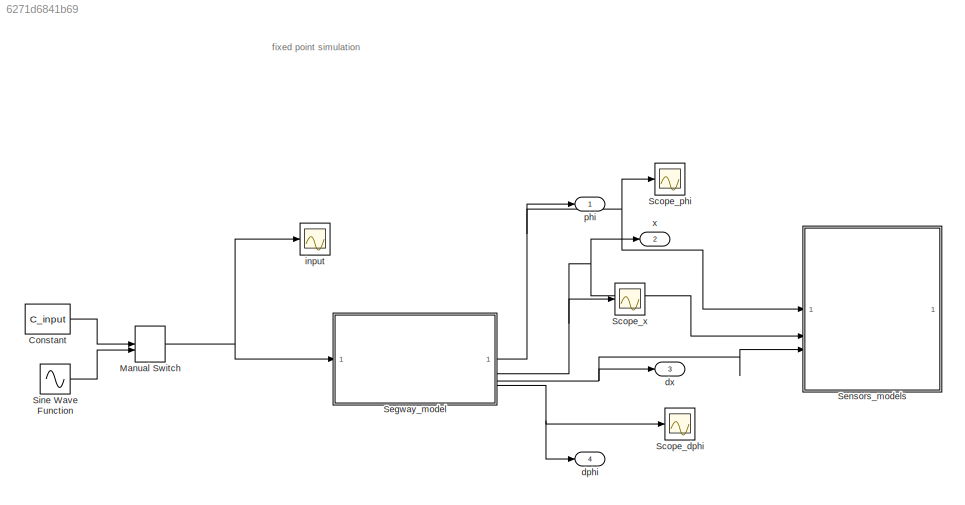
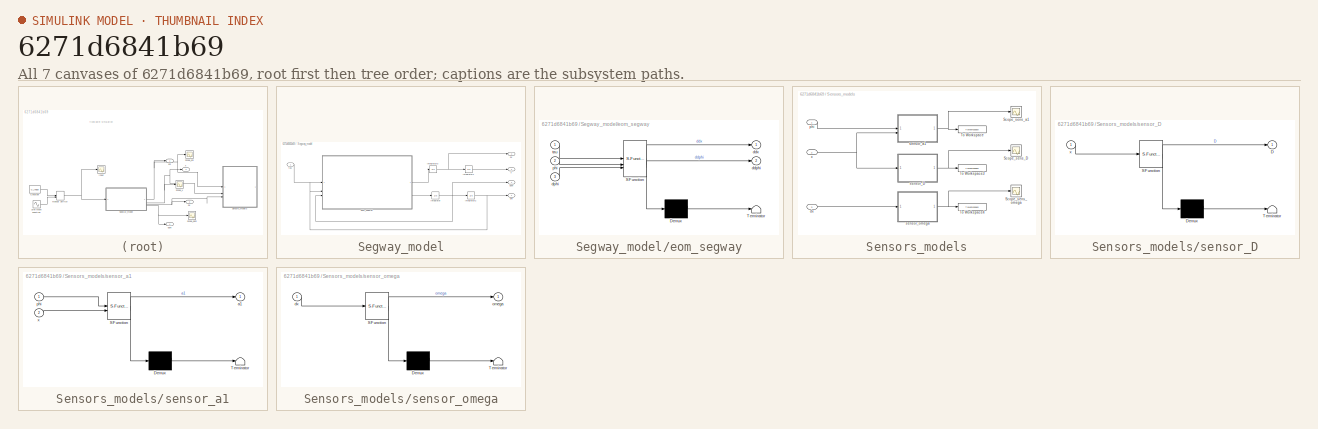
[diagram: thumbnail index - all 7 canvases of the model, root first then tree order]
MODEL slx_6271d6841b69
KIND model
CONFIG AbsTol = auto
CONFIG EnableMultiTasking = off
CONFIG FixedStep = auto
CONFIG MaxStep = auto
CONFIG MinStep = auto
CONFIG RelTol = 1e-3
CONFIG SampleTimeConstraint = Unconstrained
CONFIG SolverName = FixedStepAuto
CONFIG StartTime = 0.0
CONFIG StopTime = 15
BLOCK [Constant] Constant
  Value = C_input
BLOCK [ManualSwitch] Manual Switch
  CurrentSetting = 0
BLOCK [Scope] Scope_dphi
  Floating = off
  NumInputPorts = 1
  ScopeSpecificationString = Simulink.scopes.TimeScopeBlockCfg('CurrentConfiguration', extmgr.ConfigurationSet(extmgr.Configuration('Core','General UI',true),extmgr.Configuration('Core','Source UI',true),extmgr.Configuration('Sources','WiredSimulink',true,'DataLoggingVariableName','ScopeData1'),extmgr.Configuration('Visuals','Time Domain',true,'SerializedDisplays',{struct('MinYLimReal','-9.61638','MaxYLimReal','9.61638','YLab...<+1373ch>
BLOCK [Scope] Scope_phi
  Floating = off
  NumInputPorts = 1
  ScopeSpecificationString = Simulink.scopes.TimeScopeBlockCfg('CurrentConfiguration', extmgr.ConfigurationSet(extmgr.Configuration('Core','General UI',true),extmgr.Configuration('Core','Source UI',true),extmgr.Configuration('Sources','WiredSimulink',true),extmgr.Configuration('Visuals','Time Domain',true,'SerializedDisplays',{struct('MinYLimReal','0.5531','MaxYLimReal','5.73009','YLabelReal','','MinYLimMag','0.5531','MaxYLim...<+1400ch>
BLOCK [Scope] Scope_x
  Floating = off
  NumInputPorts = 1
  ScopeSpecificationString = Simulink.scopes.TimeScopeBlockCfg('CurrentConfiguration', extmgr.ConfigurationSet(extmgr.Configuration('Core','General UI',true),extmgr.Configuration('Core','Source UI',true),extmgr.Configuration('Sources','WiredSimulink',true,'DataLoggingVariableName','ScopeData1'),extmgr.Configuration('Visuals','Time Domain',true,'SerializedDisplays',{struct('MinYLimReal','-0.03861','MaxYLimReal','0.34748','YLab...<+1446ch>
BLOCK [SubSystem] Segway_model
BLOCK [Integrator] Segway_model/Integrator
  InitialCondition = dphi_0
BLOCK [Integrator] Segway_model/Integrator1
  InitialCondition = x_0
BLOCK [Integrator] Segway_model/Integrator2
  InitialCondition = phi_0
BLOCK [Integrator] Segway_model/Integrator3
  InitialCondition = dx_0
BLOCK [Outport] Segway_model/dphi
  Port = 4
BLOCK [Outport] Segway_model/dx
  Port = 3
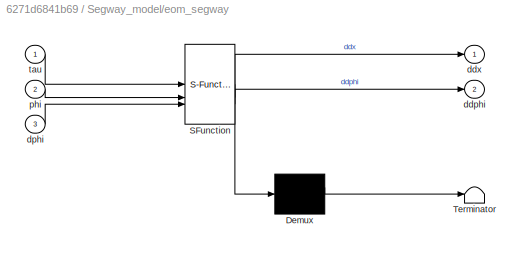
BLOCK [SubSystem] Segway_model/eom_segway
  ErrorFcn = Stateflow.Translate.translate
  LibrarySourceBlock = simulink/User-Defined\nFunctions/MATLAB Function
  PermitHierarchicalResolution = ExplicitOnly
  SFBlockType = MATLAB Function
  TreatAsAtomicUnit = on
BLOCK [Demux] Segway_model/eom_segway/ Demux 
  Outputs = 1
BLOCK [S-Function] Segway_model/eom_segway/ SFunction 
  EnableBusSupport = on
  FunctionName = sf_sfun
  Parameters = eom_params
  PortCounts = [3 3]
  SFcnIsStateOwnerBlock = off
  SFunctionDeploymentMode = off
  Tag = Stateflow S-Function 2
BLOCK [Terminator] Segway_model/eom_segway/ Terminator 
BLOCK [Outport] Segway_model/eom_segway/ddphi
  Port = 2
BLOCK [Outport] Segway_model/eom_segway/ddx
BLOCK [Inport] Segway_model/eom_segway/dphi
  Port = 3
BLOCK [Inport] Segway_model/eom_segway/phi
  Port = 2
BLOCK [Inport] Segway_model/eom_segway/tau
BLOCK [Outport] Segway_model/phi
BLOCK [Inport] Segway_model/tau
BLOCK [Outport] Segway_model/x
  Port = 2
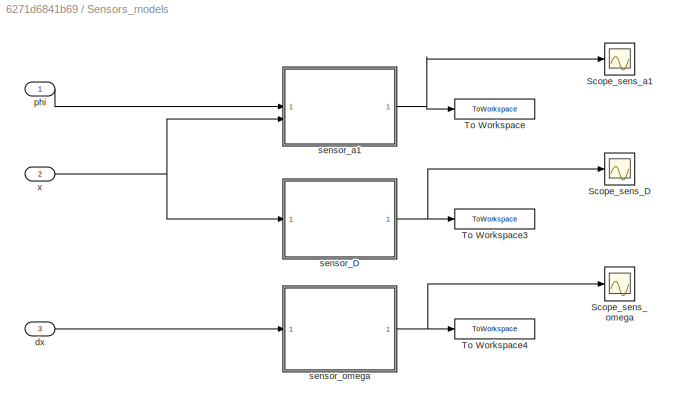
BLOCK [SubSystem] Sensors_models
BLOCK [Scope] Sensors_models/Scope_sens_D
  Floating = off
  NumInputPorts = 1
  ScopeSpecificationString = Simulink.scopes.TimeScopeBlockCfg('CurrentConfiguration', extmgr.ConfigurationSet(extmgr.Configuration('Core','General UI',true),extmgr.Configuration('Core','Source UI',true),extmgr.Configuration('Sources','WiredSimulink',true,'DataLoggingVariableName','ScopeData1'),extmgr.Configuration('Visuals','Time Domain',true,'SerializedDisplays',{struct('MinYLimReal','-0.03861','MaxYLimReal','0.34748','YLab...<+1443ch>
BLOCK [Scope] Sensors_models/Scope_sens_a1
  Floating = off
  NumInputPorts = 1
  ScopeSpecificationString = Simulink.scopes.TimeScopeBlockCfg('CurrentConfiguration', extmgr.ConfigurationSet(extmgr.Configuration('Core','General UI',true),extmgr.Configuration('Core','Source UI',true),extmgr.Configuration('Sources','WiredSimulink',true,'DataLoggingVariableName','ScopeData2'),extmgr.Configuration('Visuals','Time Domain',true,'SerializedDisplays',{struct('MinYLimReal','-0.4477','MaxYLimReal','1.24579','YLabe...<+1437ch>
BLOCK [Scope] Sensors_models/Scope_sens_omega
  Floating = off
  NumInputPorts = 1
  ScopeSpecificationString = Simulink.scopes.TimeScopeBlockCfg('CurrentConfiguration', extmgr.ConfigurationSet(extmgr.Configuration('Core','General UI',true),extmgr.Configuration('Core','Source UI',true),extmgr.Configuration('Sources','WiredSimulink',true,'DataLoggingVariableName','ScopeData3'),extmgr.Configuration('Visuals','Time Domain',true,'SerializedDisplays',{struct('MinYLimReal','-4.44002','MaxYLimReal','4.44002','YLab...<+1472ch>
BLOCK [ToWorkspace] Sensors_models/To Workspace
  FixptAsFi = on
  MaxDataPoints = inf
  SampleTime = -1
  SaveFormat = Structure With Time
  VariableName = a1
BLOCK [ToWorkspace] Sensors_models/To Workspace3
  FixptAsFi = on
  MaxDataPoints = inf
  SampleTime = -1
  SaveFormat = Structure With Time
  VariableName = D
BLOCK [ToWorkspace] Sensors_models/To Workspace4
  FixptAsFi = on
  MaxDataPoints = inf
  SampleTime = -1
  SaveFormat = Structure With Time
  VariableName = omega
BLOCK [Inport] Sensors_models/dx
  Port = 3
BLOCK [Inport] Sensors_models/phi
BLOCK [SubSystem] Sensors_models/sensor_D
  ErrorFcn = Stateflow.Translate.translate
  PermitHierarchicalResolution = ExplicitOnly
  SFBlockType = MATLAB Function
  SystemSampleTime = T_sensor_D
  TreatAsAtomicUnit = on
BLOCK [Demux] Sensors_models/sensor_D/ Demux 
  Outputs = 1
BLOCK [S-Function] Sensors_models/sensor_D/ SFunction 
  EnableBusSupport = on
  FunctionName = sf_sfun
  Parameters = std_dev_D
  PortCounts = [1 2]
  SFcnIsStateOwnerBlock = off
  SFunctionDeploymentMode = off
  Tag = Stateflow S-Function 3
BLOCK [Terminator] Sensors_models/sensor_D/ Terminator 
BLOCK [Outport] Sensors_models/sensor_D/D
BLOCK [Inport] Sensors_models/sensor_D/x
BLOCK [SubSystem] Sensors_models/sensor_a1
  ErrorFcn = Stateflow.Translate.translate
  PermitHierarchicalResolution = ExplicitOnly
  SFBlockType = MATLAB Function
  SystemSampleTime = T_sensor_a1
  TreatAsAtomicUnit = on
BLOCK [Demux] Sensors_models/sensor_a1/ Demux 
  Outputs = 1
BLOCK [S-Function] Sensors_models/sensor_a1/ SFunction 
  EnableBusSupport = on
  FunctionName = sf_sfun
  Parameters = L_a1,S_a1,eom_params,std_dev_a1
  PortCounts = [2 2]
  SFcnIsStateOwnerBlock = off
  SFunctionDeploymentMode = off
  Tag = Stateflow S-Function 5
BLOCK [Terminator] Sensors_models/sensor_a1/ Terminator 
BLOCK [Outport] Sensors_models/sensor_a1/a1
BLOCK [Inport] Sensors_models/sensor_a1/phi
BLOCK [Inport] Sensors_models/sensor_a1/x
  Port = 2
BLOCK [SubSystem] Sensors_models/sensor_omega
  ErrorFcn = Stateflow.Translate.translate
  PermitHierarchicalResolution = ExplicitOnly
  SFBlockType = MATLAB Function
  SystemSampleTime = T_sensor_omega
  TreatAsAtomicUnit = on
BLOCK [Demux] Sensors_models/sensor_omega/ Demux 
  Outputs = 1
BLOCK [S-Function] Sensors_models/sensor_omega/ SFunction 
  EnableBusSupport = on
  FunctionName = sf_sfun
  Parameters = eom_params,std_dev_omega
  PortCounts = [1 2]
  SFcnIsStateOwnerBlock = off
  SFunctionDeploymentMode = off
  Tag = Stateflow S-Function 4
BLOCK [Terminator] Sensors_models/sensor_omega/ Terminator 
BLOCK [Inport] Sensors_models/sensor_omega/dx
BLOCK [Outport] Sensors_models/sensor_omega/omega
BLOCK [Inport] Sensors_models/x
  Port = 2
BLOCK [Sin] Sine Wave Function
  Amplitude = C_input
  Frequency = freq_input
  SampleTime = 0
BLOCK [Outport] dphi
  Port = 4
  SignalName = dphi
BLOCK [Outport] dx
  Port = 3
  SignalName = dx
BLOCK [Scope] input
  Floating = off
  NumInputPorts = 1
  ScopeSpecificationString = Simulink.scopes.TimeScopeBlockCfg('CurrentConfiguration', extmgr.ConfigurationSet(extmgr.Configuration('Core','General UI',true),extmgr.Configuration('Core','Source UI',true),extmgr.Configuration('Sources','WiredSimulink',true,'DataLoggingVariableName','ScopeData1'),extmgr.Configuration('Visuals','Time Domain',true,'SerializedDisplays',{struct('MinYLimReal','-0.0125','MaxYLimReal','0.0125','YLabel...<+1391ch>
BLOCK [Outport] phi
  SignalName = phi
BLOCK [Outport] x
  Port = 2
  SignalName = x
ANNOTATION (root): fixed point simulation
LINE Constant:1 -> Manual Switch:1
NET Manual Switch:1 -> Segway_model:1, input:1
LINE Segway_model/Integrator1:1 -> Segway_model/x:1
NET Segway_model/Integrator2:1 -> Segway_model/eom_segway:2, Segway_model/phi:1
NET Segway_model/Integrator3:1 -> Segway_model/Integrator1:1, Segway_model/dx:1
NET Segway_model/Integrator:1 -> Segway_model/Integrator2:1, Segway_model/dphi:1, Segway_model/eom_segway:3
LINE Segway_model/eom_segway:1 -> Segway_model/Integrator3:1
LINE Segway_model/eom_segway:2 -> Segway_model/Integrator:1
LINE Segway_model/tau:1 -> Segway_model/eom_segway:1
NET Segway_model:1 -> Scope_phi:1, Sensors_models:1, phi:1
NET Segway_model:2 -> Scope_x:1, Sensors_models:2, x:1
NET Segway_model:3 -> Sensors_models:3, dx:1
NET Segway_model:4 -> Scope_dphi:1, dphi:1
LINE Sensors_models/dx:1 -> Sensors_models/sensor_omega:1
LINE Sensors_models/phi:1 -> Sensors_models/sensor_a1:1
NET Sensors_models/sensor_D:1 -> Sensors_models/Scope_sens_D:1, Sensors_models/To Workspace3:1
NET Sensors_models/sensor_a1:1 -> Sensors_models/Scope_sens_a1:1, Sensors_models/To Workspace:1
NET Sensors_models/sensor_omega:1 -> Sensors_models/Scope_sens_omega:1, Sensors_models/To Workspace4:1
NET Sensors_models/x:1 -> Sensors_models/sensor_D:1, Sensors_models/sensor_a1:2
LINE Sine Wave Function:1 -> Manual Switch:2
note: NET lines group one-source signal fan-out (src -> all destinations, sorted); 1:1 wires keep LINE
CHART Segway_model/eom_segway states=1 transitions=1
  STATE_LABEL 'eML_blk_kernel()'
  STATE_LABEL 'SCRIPT:\n% function that describes the EoM\n\nfunction [ddx, ddphi] = eom_segway(tau, phi, dphi, eom_params)\n\n% rename the parameters inside the struct\nr = eom_params.wheel_radius;\nmb = eom_params.body_mass;\nmw = eom_params.wheel_mass;\ng = eom_params.gravity;\nL = eom_params.center_of_mass;\n% a = eom_params.semiaxis_wheels; not used\n\n% Operations in order to get the EoM\nM_ddx = 2*(3/2*mw + 1/2*mb);\nM_...<+262ch>'
CHART Sensors_models/sensor_D states=1 transitions=1
  STATE_LABEL 'eML_blk_kernel()'
  STATE_LABEL 'SCRIPT:\nfunction D = sensor_D(x, std_dev_D)\n% function to calculate the distance D\nD = x + std_dev_D*randn(1,1);\n'
CHART Sensors_models/sensor_omega states=1 transitions=1
  STATE_LABEL 'eML_blk_kernel()'
  STATE_LABEL 'SCRIPT:\nfunction omega = sensor_omega(dx, std_dev_omega, eom_params)\n% function that calculates the angular velocity of the wheels\nomega = 1/eom_params.wheel_radius * dx + std_dev_omega*randn(1,1);\n'
CHART Sensors_models/sensor_a1 states=1 transitions=1
  STATE_LABEL 'eML_blk_kernel()'
  STATE_LABEL 'SCRIPT:\nfunction a1 = sensor_a1(phi, x, eom_params, L_a1, S_a1, std_dev_a1)\n% Function to calculate the angle a1\na1 = atan2(x - S_a1 + eom_params.center_of_mass*sin(phi),...\n      L_a1 - eom_params.center_of_mass*cos(phi) - eom_params.wheel_radius) + std_dev_a1*randn(1,1);'
CHART  states=0 transitions=0
CHART  states=0 transitions=0
CHART  states=0 transitions=0
CHART  states=0 transitions=0
